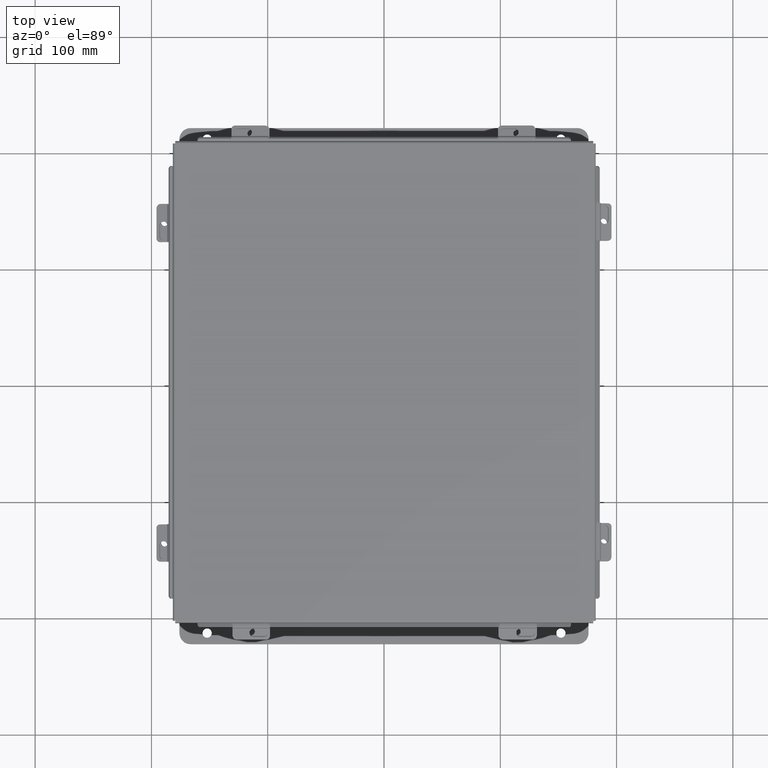
[diagram: clean part render]
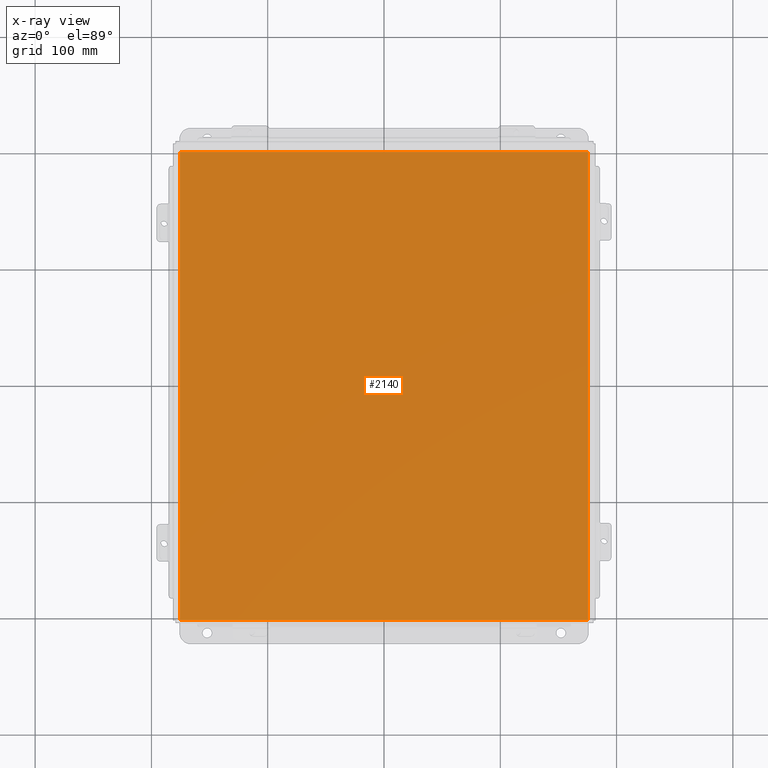
[diagram: x-ray — body ghosted, one internal face saturated and labeled with its STEP entity id]
A machine part, top view, then the same camera in x-ray: the body is ghosted and one INTERNAL B-rep face — a face not visible from any outside direction — is saturated and labeled: STEP entity #2140.
In plain terms, the highlighted planar face has unit normal (0, 0, -1).
Its self-contained STEP definition (entity closure, byte-faithful):
#25 = ORIENTED_EDGE ( 'NONE', *, *, #2509, .F. ) ;
#89 = EDGE_CURVE ( 'NONE', #2205, #8573, #8632, .T. ) ;
#129 = FACE_OUTER_BOUND ( 'NONE', #295, .T. ) ;
#295 = EDGE_LOOP ( 'NONE', ( #4472, #7719, #25, #5916 ) ) ;
#787 = DIRECTION ( 'NONE',  ( -1.000000000000000000, -0.0000000000000000000, -0.0000000000000000000 ) ) ;
#1005 = DIRECTION ( 'NONE',  ( -0.0000000000000000000, -1.000000000000000000, -0.0000000000000000000 ) ) ;
#1116 = PLANE ( 'NONE',  #7339 ) ;
#1170 = CARTESIAN_POINT ( 'NONE',  ( -6.912299999999999200, -7.925299999999998200, 4.268512490100411300E-017 ) ) ;
#2140 = ADVANCED_FACE ( 'NONE', ( #129 ), #1116, .F. ) ;
#2144 = VERTEX_POINT ( 'NONE', #2466 ) ;
#2205 = VERTEX_POINT ( 'NONE', #8379 ) ;
#2466 = CARTESIAN_POINT ( 'NONE',  ( -6.912299999999999200, 7.925300000000000900, 4.268512490100411300E-017 ) ) ;
#2509 = EDGE_CURVE ( 'NONE', #3984, #2144, #6118, .T. ) ;
#2759 = VECTOR ( 'NONE', #8199, 39.37007874015748100 ) ;
#2900 = CARTESIAN_POINT ( 'NONE',  ( 6.912299999999999200, 7.925300000000001800, 4.268512490100411300E-017 ) ) ;
#3486 = EDGE_CURVE ( 'NONE', #3984, #8573, #3950, .T. ) ;
#3950 = LINE ( 'NONE', #8224, #2759 ) ;
#3970 = VECTOR ( 'NONE', #1005, 39.37007874015748100 ) ;
#3984 = VERTEX_POINT ( 'NONE', #9446 ) ;
#4073 = EDGE_CURVE ( 'NONE', #2205, #2144, #5000, .T. ) ;
#4472 = ORIENTED_EDGE ( 'NONE', *, *, #89, .F. ) ;
#4830 = CARTESIAN_POINT ( 'NONE',  ( 0.0000000000000000000, 0.0000000000000000000, 0.0000000000000000000 ) ) ;
#5000 = LINE ( 'NONE', #7815, #7764 ) ;
#5916 = ORIENTED_EDGE ( 'NONE', *, *, #3486, .T. ) ;
#6118 = LINE ( 'NONE', #1170, #9635 ) ;
#6404 = DIRECTION ( 'NONE',  ( -1.000000000000000000, 0.0000000000000000000, -0.0000000000000000000 ) ) ;
#6417 = DIRECTION ( 'NONE',  ( -0.0000000000000000000, 1.000000000000000000, -0.0000000000000000000 ) ) ;
#6670 = CARTESIAN_POINT ( 'NONE',  ( 6.912299999999999200, -7.925299999999997300, 4.268512490100411300E-017 ) ) ;
#7339 = AXIS2_PLACEMENT_3D ( 'NONE', #4830, #7923, #6404 ) ;
#7719 = ORIENTED_EDGE ( 'NONE', *, *, #4073, .T. ) ;
#7764 = VECTOR ( 'NONE', #787, 39.37007874015748100 ) ;
#7815 = CARTESIAN_POINT ( 'NONE',  ( -7.000000000000000000, 7.925300000000000900, 0.0000000000000000000 ) ) ;
#7923 = DIRECTION ( 'NONE',  ( 0.0000000000000000000, 0.0000000000000000000, -1.000000000000000000 ) ) ;
#8199 = DIRECTION ( 'NONE',  ( 1.000000000000000000, 0.0000000000000000000, 0.0000000000000000000 ) ) ;
#8224 = CARTESIAN_POINT ( 'NONE',  ( -7.000000000000000000, -7.925299999999997300, 0.0000000000000000000 ) ) ;
#8379 = CARTESIAN_POINT ( 'NONE',  ( 6.912299999999999200, 7.925300000000000000, 4.268512490100411300E-017 ) ) ;
#8573 = VERTEX_POINT ( 'NONE', #6670 ) ;
#8632 = LINE ( 'NONE', #2900, #3970 ) ;
#9446 = CARTESIAN_POINT ( 'NONE',  ( -6.912299999999999200, -7.925299999999997300, 4.268512490100411300E-017 ) ) ;
#9635 = VECTOR ( 'NONE', #6417, 39.37007874015748100 ) ;